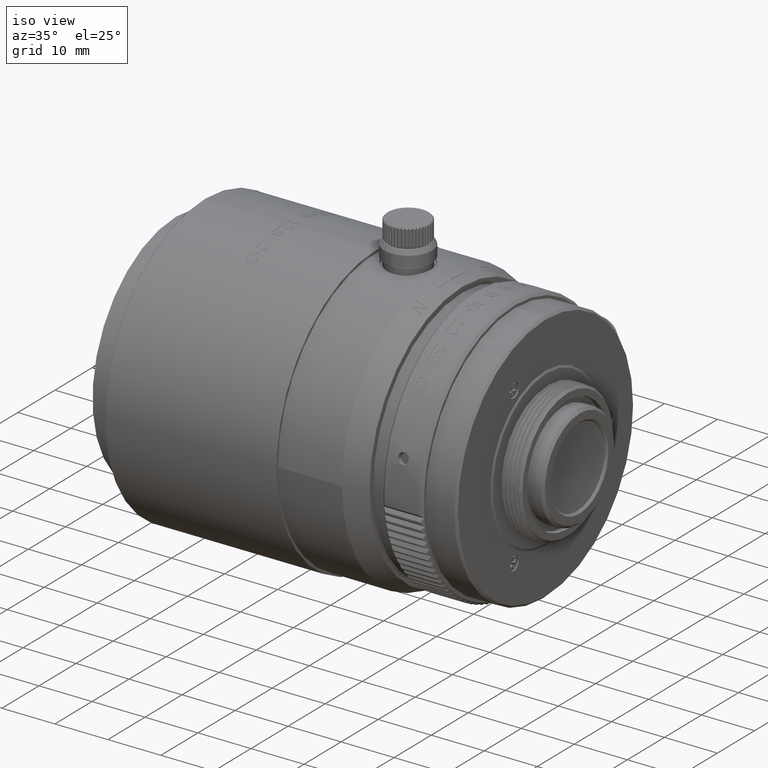
[diagram: clean part render]
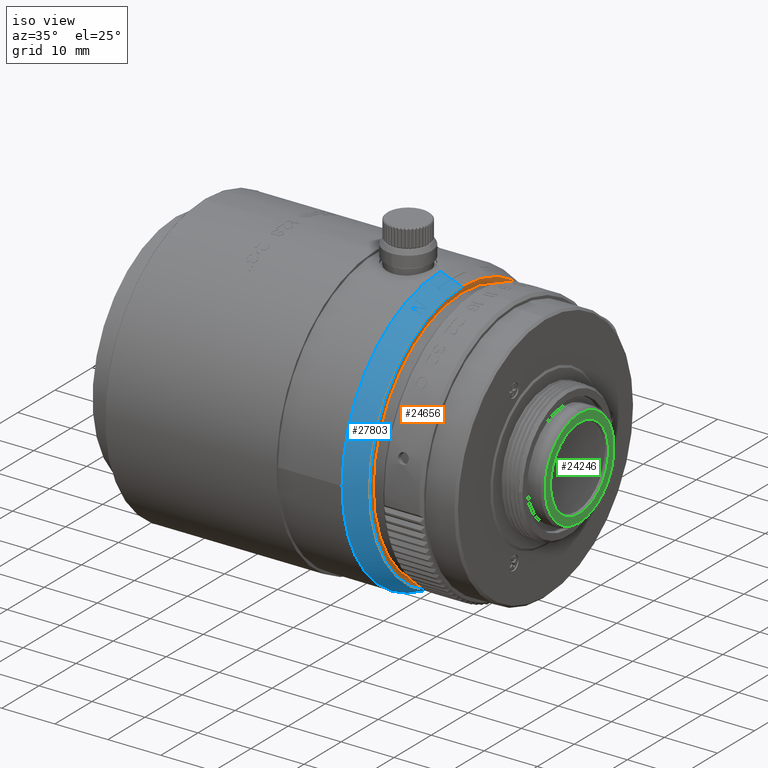
[diagram: same view with three faces highlighted in distinct colors, each labeled with its STEP entity id]
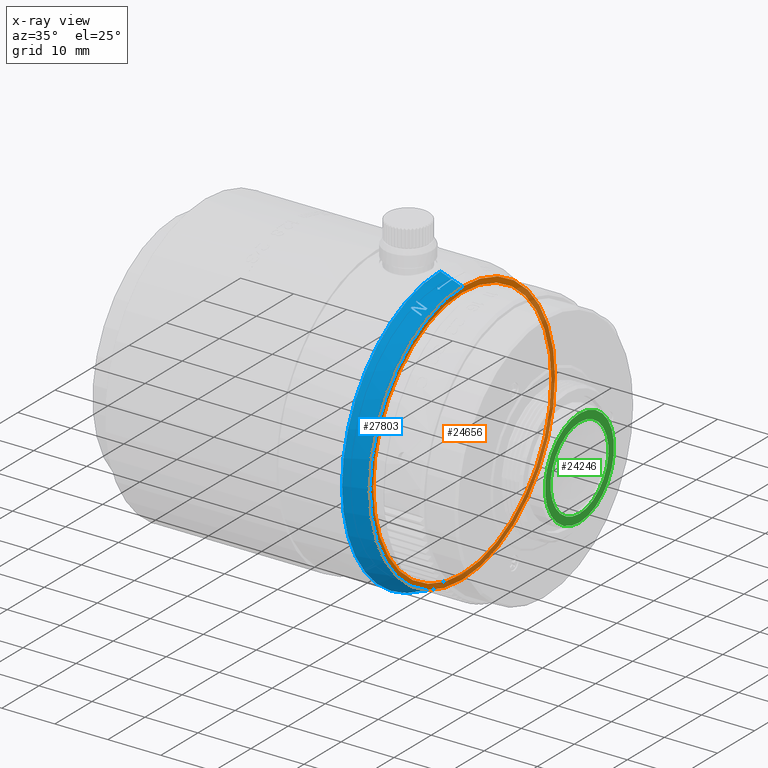
[diagram: x-ray of the same camera — body ghosted, the three highlighted faces saturated]
A machine part, iso view with three faces highlighted in distinct colors.
The next image is the same camera in x-ray (body ghosted, the three faces saturated) — at least one of them is partly hidden behind the body in this view.
Their STEP definitions:

[orange] entity #24656 — the highlighted planar face has unit normal (1, 0, 0).
#623 = EDGE_CURVE ( 'NONE', #21596, #50473, #19133, .T. ) ;
#2503 = CARTESIAN_POINT ( 'NONE',  ( 2665.921401344000060, 1132.760967307000101, 0.000000000000000000 ) ) ;
#2552 = DIRECTION ( 'NONE',  ( 1.000000000000000000, 0.000000000000000000, 0.000000000000000000 ) ) ;
#2854 = DIRECTION ( 'NONE',  ( 0.000000000000000000, 0.000000000000000000, -1.000000000000000000 ) ) ;
#8539 = AXIS2_PLACEMENT_3D ( 'NONE', #60477, #19553, #24713 ) ;
#8540 = DIRECTION ( 'NONE',  ( 0.000000000000000000, 0.000000000000000000, -1.000000000000000000 ) ) ;
#11919 = VERTEX_POINT ( 'NONE', #65789 ) ;
#12016 = PLANE ( 'NONE',  #8539 ) ;
#13204 = FACE_OUTER_BOUND ( 'NONE', #76461, .T. ) ;
#13504 = EDGE_CURVE ( 'NONE', #48455, #11919, #54965, .T. ) ;
#14808 = CARTESIAN_POINT ( 'NONE',  ( 2665.921401344000060, 1132.760967307000101, 0.000000000000000000 ) ) ;
#19133 = CIRCLE ( 'NONE', #52088, 25.00000000014404833 ) ;
#19553 = DIRECTION ( 'NONE',  ( 1.000000000000000000, 0.000000000000000000, 0.000000000000000000 ) ) ;
#20261 = AXIS2_PLACEMENT_3D ( 'NONE', #49443, #2552, #8540 ) ;
#20411 = DIRECTION ( 'NONE',  ( 0.000000000000000000, 0.000000000000000000, 1.000000000000000000 ) ) ;
#21596 = VERTEX_POINT ( 'NONE', #45040 ) ;
#24656 = ADVANCED_FACE ( 'NONE', ( #25501, #13204 ), #12016, .T. ) ;
#24713 = DIRECTION ( 'NONE',  ( 0.000000000000000000, -1.000000000000000000, 0.000000000000000000 ) ) ;
#25501 = FACE_BOUND ( 'NONE', #77659, .T. ) ;
#26508 = EDGE_CURVE ( 'NONE', #11919, #48455, #26915, .T. ) ;
#26915 = CIRCLE ( 'NONE', #39578, 24.00000000000002132 ) ;
#28400 = CARTESIAN_POINT ( 'NONE',  ( 2665.921401344000060, 1132.760967307000101, 25.00000000014404833 ) ) ;
#38608 = DIRECTION ( 'NONE',  ( 1.000000000000000000, 0.000000000000000000, 0.000000000000000000 ) ) ;
#38887 = ORIENTED_EDGE ( 'NONE', *, *, #71108, .T. ) ;
#39422 = DIRECTION ( 'NONE',  ( 1.000000000000000000, 0.000000000000000000, 0.000000000000000000 ) ) ;
#39578 = AXIS2_PLACEMENT_3D ( 'NONE', #64235, #57886, #77282 ) ;
#43011 = ORIENTED_EDGE ( 'NONE', *, *, #13504, .F. ) ;
#43572 = AXIS2_PLACEMENT_3D ( 'NONE', #2503, #39422, #20411 ) ;
#45040 = CARTESIAN_POINT ( 'NONE',  ( 2665.921401344000060, 1132.760967307000101, -25.00000000014404833 ) ) ;
#48455 = VERTEX_POINT ( 'NONE', #64272 ) ;
#49443 = CARTESIAN_POINT ( 'NONE',  ( 2665.921401344000060, 1132.760967307000101, 0.000000000000000000 ) ) ;
#50473 = VERTEX_POINT ( 'NONE', #28400 ) ;
#52088 = AXIS2_PLACEMENT_3D ( 'NONE', #14808, #38608, #2854 ) ;
#54965 = CIRCLE ( 'NONE', #43572, 24.00000000000002132 ) ;
#57886 = DIRECTION ( 'NONE',  ( 1.000000000000000000, 0.000000000000000000, 0.000000000000000000 ) ) ;
#60477 = CARTESIAN_POINT ( 'NONE',  ( 2665.921401344000060, 1158.760967307000101, 26.00000000000000355 ) ) ;
#60524 = ORIENTED_EDGE ( 'NONE', *, *, #623, .T. ) ;
#64235 = CARTESIAN_POINT ( 'NONE',  ( 2665.921401344000060, 1132.760967307000101, 0.000000000000000000 ) ) ;
#64272 = CARTESIAN_POINT ( 'NONE',  ( 2665.921401344000060, 1132.760967307000101, -24.00000000000002132 ) ) ;
#65789 = CARTESIAN_POINT ( 'NONE',  ( 2665.921401344000060, 1132.760967307000101, 24.00000000000002132 ) ) ;
#69310 = ORIENTED_EDGE ( 'NONE', *, *, #26508, .F. ) ;
#71108 = EDGE_CURVE ( 'NONE', #50473, #21596, #76216, .T. ) ;
#76216 = CIRCLE ( 'NONE', #20261, 25.00000000014404833 ) ;
#76461 = EDGE_LOOP ( 'NONE', ( #38887, #60524 ) ) ;
#77282 = DIRECTION ( 'NONE',  ( 0.000000000000000000, 0.000000000000000000, 1.000000000000000000 ) ) ;
#77659 = EDGE_LOOP ( 'NONE', ( #43011, #69310 ) ) ;

[blue] entity #27803 — the highlighted conical surface has half-angle 20 deg.
#145 = CARTESIAN_POINT ( 'NONE',  ( 2663.996401375863115, 1129.340349742484250, 25.47201629308155546 ) ) ;
#306 = CARTESIAN_POINT ( 'NONE',  ( 2661.800186457000109, 1132.760967307000101, 26.49999954781626954 ) ) ;
#327 = CONICAL_SURFACE ( 'NONE', #6687, 25.00000000012724044, 0.3490658503537381607 ) ;
#613 = EDGE_CURVE ( 'NONE', #17380, #53683, #19929, .T. ) ;
#631 = CIRCLE ( 'NONE', #22215, 26.09191070279067404 ) ;
#888 = EDGE_CURVE ( 'NONE', #18260, #61705, #78541, .T. ) ;
#937 = CARTESIAN_POINT ( 'NONE',  ( 2663.996404401758809, 1132.121100535088090, 25.69267499799989452 ) ) ;
#1096 = CARTESIAN_POINT ( 'NONE',  ( 2663.996401343955313, 1132.760967307081273, 25.70064270102452753 ) ) ;
#1126 = CARTESIAN_POINT ( 'NONE',  ( 2662.921401343940033, 1123.469300680042352, 24.38140142439421609 ) ) ;
#1376 = CARTESIAN_POINT ( 'NONE',  ( 2663.219273686151155, 1123.344300680351807, 24.21710867135044865 ) ) ;
#2000 = AXIS2_PLACEMENT_3D ( 'NONE', #67257, #57251, #66888 ) ;
#2068 = CARTESIAN_POINT ( 'NONE',  ( 2663.846405487533502, 1131.963014637704646, 25.74324676562866898 ) ) ;
#2552 = DIRECTION ( 'NONE',  ( 1.000000000000000000, 0.000000000000000000, 0.000000000000000000 ) ) ;
#2629 = CARTESIAN_POINT ( 'NONE',  ( 2664.921401335993778, 1123.344300688287603, 23.55116503980136144 ) ) ;
#3229 = CARTESIAN_POINT ( 'NONE',  ( 2663.846408501732640, 1131.408344710588381, 25.71969234879962585 ) ) ;
#3428 = CARTESIAN_POINT ( 'NONE',  ( 2662.921401343940033, 1123.469300680042352, 24.38140142439421609 ) ) ;
#4745 = EDGE_CURVE ( 'NONE', #57425, #38647, #58160, .T. ) ;
#4931 = CARTESIAN_POINT ( 'NONE',  ( 2662.921401343996422, 1132.760967307000101, 0.000000000000000000 ) ) ;
#4979 = CARTESIAN_POINT ( 'NONE',  ( 2664.080723474292427, 1129.206504185687436, 25.42267148268837929 ) ) ;
#5642 = EDGE_CURVE ( 'NONE', #6640, #21243, #62736, .T. ) ;
#5664 = DIRECTION ( 'NONE',  ( 0.000000000000000000, 0.000000000000000000, -1.000000000000000000 ) ) ;
#5717 = CARTESIAN_POINT ( 'NONE',  ( 2663.996408044418331, 1130.512777637014551, 25.60249630065290560 ) ) ;
#6228 = ORIENTED_EDGE ( 'NONE', *, *, #21597, .F. ) ;
#6566 = ORIENTED_EDGE ( 'NONE', *, *, #5642, .F. ) ;
#6640 = VERTEX_POINT ( 'NONE', #17670 ) ;
#6687 = AXIS2_PLACEMENT_3D ( 'NONE', #28938, #76598, #22590 ) ;
#7346 = CARTESIAN_POINT ( 'NONE',  ( 2664.921401343978687, 1124.385967307159490, 23.94139430046730155 ) ) ;
#7558 = B_SPLINE_CURVE_WITH_KNOTS ( 'NONE', 3,
 ( #34592, #57280, #46907, #34202 ),
 .UNSPECIFIED., .F., .F.,
 ( 4, 4 ),
 ( 0.000000000000000000, 1.000000000000000000 ),
 .UNSPECIFIED. ) ;
#8032 = CARTESIAN_POINT ( 'NONE',  ( 2663.846401532117852, 1132.656875727313945, 25.75502782014689984 ) ) ;
#8092 = CARTESIAN_POINT ( 'NONE',  ( 2663.846401344168044, 1129.305967307666833, 25.52244642666135022 ) ) ;
#8432 = CARTESIAN_POINT ( 'NONE',  ( 2663.846402402873082, 1129.623315253298642, 25.56339993698422219 ) ) ;
#8448 = CARTESIAN_POINT ( 'NONE',  ( 2664.092246014210559, 1124.510967307113788, 24.30378072738568562 ) ) ;
#8540 = DIRECTION ( 'NONE',  ( 0.000000000000000000, 0.000000000000000000, -1.000000000000000000 ) ) ;
#8688 = ORIENTED_EDGE ( 'NONE', *, *, #58697, .F. ) ;
#8817 = CARTESIAN_POINT ( 'NONE',  ( 2663.846401899146258, 1132.518083552825601, 25.75446674378655487 ) ) ;
#9209 = CARTESIAN_POINT ( 'NONE',  ( 2663.846403588715475, 1132.240526417823730, 25.74997855914980960 ) ) ;
#9299 = EDGE_CURVE ( 'NONE', #38647, #18260, #65856, .T. ) ;
#9330 = VERTEX_POINT ( 'NONE', #64436 ) ;
#9423 = VERTEX_POINT ( 'NONE', #23504 ) ;
#9753 = ORIENTED_EDGE ( 'NONE', *, *, #71020, .F. ) ;
#10533 = CARTESIAN_POINT ( 'NONE',  ( 2663.996408257164603, 1131.482026439403171, 25.66879849480450204 ) ) ;
#10992 = CARTESIAN_POINT ( 'NONE',  ( 2663.814498884632940, 1129.119138075721366, 25.50818746060546971 ) ) ;
#11508 = ORIENTED_EDGE ( 'NONE', *, *, #22668, .T. ) ;
#12084 = CARTESIAN_POINT ( 'NONE',  ( 2663.996409194235639, 1131.204834119968154, 25.65386133918117295 ) ) ;
#12276 = CARTESIAN_POINT ( 'NONE',  ( 2664.093536215739277, 1124.169127101218919, 24.18618178291022502 ) ) ;
#12524 = ORIENTED_EDGE ( 'NONE', *, *, #68489, .T. ) ;
#12973 = B_SPLINE_CURVE_WITH_KNOTS ( 'NONE', 3,
 ( #21151, #38190, #62450, #8032, #8817, #57667, #9209, #56489, #2068, #67979, #33419, #50539, #3229, #75932, #33026, #74755, #57268, #20345, #32649, #27091, #13616, #44557, #51323, #75540, #8432, #50924, #37801, #62052 ),
 .UNSPECIFIED., .F., .F.,
 ( 4, 3, 3, 3, 3, 3, 3, 3, 3, 4 ),
 ( 1.603165294530711463E-13, 0.0001040917924215829039, 0.0005204844746114176439, 0.0009368771526300698465, 0.001353269827859174919, 0.001769662501684561269, 0.002186055175494770741, 0.002825605813365328779, 0.003145541488739255626, 0.003465526554264944294 ),
 .UNSPECIFIED. ) ;
#13156 = CARTESIAN_POINT ( 'NONE',  ( 2662.921401343996422, 1132.760967307000101, 0.000000000000000000 ) ) ;
#13182 = ORIENTED_EDGE ( 'NONE', *, *, #68261, .F. ) ;
#13616 = CARTESIAN_POINT ( 'NONE',  ( 2663.846405825489910, 1130.152984536316580, 25.62374053203935986 ) ) ;
#14166 = ORIENTED_EDGE ( 'NONE', *, *, #9299, .F. ) ;
#14877 = EDGE_CURVE ( 'NONE', #65535, #9423, #7558, .T. ) ;
#16029 = B_SPLINE_CURVE_WITH_KNOTS ( 'NONE', 3,
 ( #76643, #70677, #16285, #34525 ),
 .UNSPECIFIED., .F., .F.,
 ( 4, 4 ),
 ( 0.000000000000000000, 1.000000000000000000 ),
 .UNSPECIFIED. ) ;
#16217 = VERTEX_POINT ( 'NONE', #306 ) ;
#16285 = CARTESIAN_POINT ( 'NONE',  ( 2663.794230271341348, 1123.344300679854769, 23.99257772980680414 ) ) ;
#17278 = CARTESIAN_POINT ( 'NONE',  ( 2663.996403603129238, 1129.822394409577555, 25.53209318302077691 ) ) ;
#17380 = VERTEX_POINT ( 'NONE', #38838 ) ;
#17533 = CARTESIAN_POINT ( 'NONE',  ( 2664.921401343978687, 1124.385967307159490, 23.94139430046730155 ) ) ;
#17648 = VERTEX_POINT ( 'NONE', #42349 ) ;
#17661 = CARTESIAN_POINT ( 'NONE',  ( 2663.996401343903017, 1129.305967306938555, 25.46735184989363532 ) ) ;
#17670 = CARTESIAN_POINT ( 'NONE',  ( 2663.996401343903017, 1129.305967306938555, 25.46735184989363532 ) ) ;
#18056 = CARTESIAN_POINT ( 'NONE',  ( 2663.996409245475661, 1131.066342336692287, 25.64470966164083521 ) ) ;
#18093 = CARTESIAN_POINT ( 'NONE',  ( 2663.939204845514723, 1128.970639808771466, 25.44067199994881179 ) ) ;
#18260 = VERTEX_POINT ( 'NONE', #54617 ) ;
#18523 = CARTESIAN_POINT ( 'NONE',  ( 2663.673275576188644, 1129.354510253691160, 25.59255750419200837 ) ) ;
#18869 = CARTESIAN_POINT ( 'NONE',  ( 2663.974807161862827, 1129.029977000639064, 25.43632842859412335 ) ) ;
#19099 = DIRECTION ( 'NONE',  ( 1.000000000000000000, -0.000000000000000000, -0.000000000000000000 ) ) ;
#19413 = CARTESIAN_POINT ( 'NONE',  ( 2664.666082225338869, 1124.510967306828661, 24.08300637771136010 ) ) ;
#19484 = B_SPLINE_CURVE_WITH_KNOTS ( 'NONE', 3,
 ( #56968, #61757, #62141, #44645 ),
 .UNSPECIFIED., .F., .F.,
 ( 4, 4 ),
 ( 1.080163352911047448E-13, 0.0002202877274762545564 ),
 .UNSPECIFIED. ) ;
#19929 = B_SPLINE_CURVE_WITH_KNOTS ( 'NONE', 3,
 ( #68384, #38998, #8448, #57284 ),
 .UNSPECIFIED., .F., .F.,
 ( 4, 4 ),
 ( 0.000000000000000000, 1.000000000000000000 ),
 .UNSPECIFIED. ) ;
#20261 = AXIS2_PLACEMENT_3D ( 'NONE', #49443, #2552, #8540 ) ;
#20298 = AXIS2_PLACEMENT_3D ( 'NONE', #25347, #37650, #44803 ) ;
#20345 = CARTESIAN_POINT ( 'NONE',  ( 2663.846408798098764, 1130.715870645679843, 25.67428674913306352 ) ) ;
#20671 = EDGE_CURVE ( 'NONE', #61705, #17380, #59112, .T. ) ;
#21151 = CARTESIAN_POINT ( 'NONE',  ( 2663.846401343893831, 1132.760967307222927, 25.75523823617920272 ) ) ;
#21243 = VERTEX_POINT ( 'NONE', #1096 ) ;
#21596 = VERTEX_POINT ( 'NONE', #45040 ) ;
#21597 = EDGE_CURVE ( 'NONE', #21596, #25657, #69259, .T. ) ;
#21924 = EDGE_CURVE ( 'NONE', #54030, #59456, #12973, .T. ) ;
#21970 = ORIENTED_EDGE ( 'NONE', *, *, #21924, .F. ) ;
#22212 = B_SPLINE_CURVE_WITH_KNOTS ( 'NONE', 3,
 ( #77696, #18523, #48695, #54259, #29662, #72141, #10992, #60237, #41181, #60621 ),
 .UNSPECIFIED., .F., .F.,
 ( 4, 3, 3, 4 ),
 ( 3.807264752975403289E-13, 0.0001040020917421170886, 0.0003218310548011019860, 0.0005396676633403890960 ),
 .UNSPECIFIED. ) ;
#22215 = AXIS2_PLACEMENT_3D ( 'NONE', #13156, #19099, #24668 ) ;
#22590 = DIRECTION ( 'NONE',  ( 0.000000000000000000, 0.000000000000000000, 1.000000000000000000 ) ) ;
#22668 = EDGE_CURVE ( 'NONE', #16217, #9330, #33871, .T. ) ;
#23504 = CARTESIAN_POINT ( 'NONE',  ( 2664.921401343989146, 1123.094300680149900, 23.44965974962187971 ) ) ;
#24257 = CARTESIAN_POINT ( 'NONE',  ( 2664.264856186104225, 1124.760967306908242, 24.32111208694739091 ) ) ;
#24668 = DIRECTION ( 'NONE',  ( 0.000000000000000000, 2.042422488296641944E-13, -1.000000000000000000 ) ) ;
#24783 = CARTESIAN_POINT ( 'NONE',  ( 2663.996402409698931, 1132.440984320266125, 25.69865027964252846 ) ) ;
#24854 = AXIS2_PLACEMENT_3D ( 'NONE', #4931, #53387, #77602 ) ;
#25121 = CARTESIAN_POINT ( 'NONE',  ( 2661.800186457000109, 1132.760967307000101, -26.49999954781626954 ) ) ;
#25175 = CARTESIAN_POINT ( 'NONE',  ( 2663.996401343955313, 1132.760967307081273, 25.70064270102452753 ) ) ;
#25347 = CARTESIAN_POINT ( 'NONE',  ( 2661.800186457000109, 1132.760967307000101, 0.000000000000000000 ) ) ;
#25657 = VERTEX_POINT ( 'NONE', #25121 ) ;
#25950 = LINE ( 'NONE', #34139, #59857 ) ;
#26374 = CARTESIAN_POINT ( 'NONE',  ( 2663.996407352574352, 1131.694935634983040, 25.67940696692095770 ) ) ;
#26914 = B_SPLINE_CURVE_WITH_KNOTS ( 'NONE', 3,
 ( #78049, #18093, #53437, #18869, #41536, #47883, #4979, #29231, #48269, #77655 ),
 .UNSPECIFIED., .F., .F.,
 ( 4, 3, 3, 4 ),
 ( 9.679587383275679249E-14, 0.0001040018972623134351, 0.0003103193239240780257, 0.0005166434084057922645 ),
 .UNSPECIFIED. ) ;
#27091 = CARTESIAN_POINT ( 'NONE',  ( 2663.846407314053522, 1130.365176746361385, 25.64444993886546342 ) ) ;
#27803 = ADVANCED_FACE ( 'NONE', ( #65453, #59120 ), #327, .T. ) ;
#28400 = CARTESIAN_POINT ( 'NONE',  ( 2665.921401344000060, 1132.760967307000101, 25.00000000014404833 ) ) ;
#28822 = B_SPLINE_CURVE_WITH_KNOTS ( 'NONE', 3,
 ( #37152, #61419, #74515, #37945 ),
 .UNSPECIFIED., .F., .F.,
 ( 4, 4 ),
 ( 1.701739114718745292E-14, 0.0002136498929734882582 ),
 .UNSPECIFIED. ) ;
#28938 = CARTESIAN_POINT ( 'NONE',  ( 2665.921401344046444, 1132.760967307000101, 0.000000000000000000 ) ) ;
#29231 = CARTESIAN_POINT ( 'NONE',  ( 2664.116023256255176, 1129.265337156496571, 25.41792415657432258 ) ) ;
#29407 = ORIENTED_EDGE ( 'NONE', *, *, #62251, .F. ) ;
#29434 = CARTESIAN_POINT ( 'NONE',  ( 2663.598189519426796, 1124.760967307031478, 24.57641754409617718 ) ) ;
#29662 = CARTESIAN_POINT ( 'NONE',  ( 2663.743133789936110, 1129.238079899931563, 25.55118175279967119 ) ) ;
#29972 = CARTESIAN_POINT ( 'NONE',  ( 2663.996409296716138, 1130.927850553394364, 25.63555798409904796 ) ) ;
#30933 = CARTESIAN_POINT ( 'NONE',  ( 2663.511975922041529, 1123.821904892871999, 24.28574587663682394 ) ) ;
#31917 = CARTESIAN_POINT ( 'NONE',  ( 2663.996401851423798, 1132.547639113629430, 25.69997847942010694 ) ) ;
#32649 = CARTESIAN_POINT ( 'NONE',  ( 2663.846408212875758, 1130.577576955554377, 25.66252081136939367 ) ) ;
#33026 = CARTESIAN_POINT ( 'NONE',  ( 2663.846409245872564, 1131.131195591735377, 25.70399300093250972 ) ) ;
#33362 = DIRECTION ( 'NONE',  ( -0.9396926208013429704, 0.000000000000000000, 0.3420201432832625232 ) ) ;
#33419 = CARTESIAN_POINT ( 'NONE',  ( 2663.846407245429873, 1131.685611674416123, 25.73315098864250672 ) ) ;
#33871 = CIRCLE ( 'NONE', #78254, 26.49999954796000168 ) ;
#34139 = CARTESIAN_POINT ( 'NONE',  ( 2665.921401344046444, 1132.760967307000101, 25.00000000012724044 ) ) ;
#34202 = CARTESIAN_POINT ( 'NONE',  ( 2664.921401343989146, 1123.094300680149900, 23.44965974962187971 ) ) ;
#34416 = EDGE_CURVE ( 'NONE', #50473, #21243, #62609, .T. ) ;
#34525 = CARTESIAN_POINT ( 'NONE',  ( 2663.219273686151155, 1123.344300680351807, 24.21710867135044865 ) ) ;
#34592 = CARTESIAN_POINT ( 'NONE',  ( 2662.921401344244714, 1123.094300680216747, 24.23516784436827365 ) ) ;
#34633 = EDGE_LOOP ( 'NONE', ( #6228, #51079, #68359, #6566, #29407, #9753, #64443, #51608, #21970, #44827, #11508, #12524 ) ) ;
#34887 = EDGE_CURVE ( 'NONE', #53683, #42989, #55092, .T. ) ;
#35005 = CARTESIAN_POINT ( 'NONE',  ( 2664.921401344029164, 1132.760967307000101, 0.000000000000000000 ) ) ;
#35393 = AXIS2_PLACEMENT_3D ( 'NONE', #35005, #65203, #51735 ) ;
#35449 = CIRCLE ( 'NONE', #20298, 26.49999954796000168 ) ;
#36603 = ORIENTED_EDGE ( 'NONE', *, *, #888, .F. ) ;
#37152 = CARTESIAN_POINT ( 'NONE',  ( 2664.186601574873748, 1129.382967692685270, 25.40784481284358165 ) ) ;
#37650 = DIRECTION ( 'NONE',  ( 1.000000000000000000, -0.000000000000000000, -0.000000000000000000 ) ) ;
#37742 = CARTESIAN_POINT ( 'NONE',  ( 2662.921401343940033, 1124.760967306888460, 24.83521298724728510 ) ) ;
#37801 = CARTESIAN_POINT ( 'NONE',  ( 2663.846401441523085, 1129.411663102326656, 25.53675454006888401 ) ) ;
#37805 = ORIENTED_EDGE ( 'NONE', *, *, #14877, .F. ) ;
#37909 = CARTESIAN_POINT ( 'NONE',  ( 2664.362847958978818, 1124.044144286235223, 24.03719683883504743 ) ) ;
#37945 = CARTESIAN_POINT ( 'NONE',  ( 2663.996401343903017, 1129.305967306938555, 25.46735184989363532 ) ) ;
#38190 = CARTESIAN_POINT ( 'NONE',  ( 2663.846401375648384, 1132.726270042922124, 25.75523822462092838 ) ) ;
#38253 = CARTESIAN_POINT ( 'NONE',  ( 2663.996405854414206, 1131.907993304863794, 25.68736711067357348 ) ) ;
#38647 = VERTEX_POINT ( 'NONE', #17533 ) ;
#38838 = CARTESIAN_POINT ( 'NONE',  ( 2662.921401344068727, 1124.510967307209512, 24.75328875371363324 ) ) ;
#38998 = CARTESIAN_POINT ( 'NONE',  ( 2663.510685720514630, 1124.510967306958946, 24.52720790716113797 ) ) ;
#40506 = ORIENTED_EDGE ( 'NONE', *, *, #42178, .F. ) ;
#41013 = EDGE_LOOP ( 'NONE', ( #40506, #37805, #8688, #78397, #54157, #64024, #36603, #14166, #63801, #13182 ) ) ;
#41181 = CARTESIAN_POINT ( 'NONE',  ( 2663.885800632823248, 1129.000301826079522, 25.46478088775979032 ) ) ;
#41536 = CARTESIAN_POINT ( 'NONE',  ( 2664.010119107864739, 1129.088830242028280, 25.43197097649565563 ) ) ;
#41875 = CARTESIAN_POINT ( 'NONE',  ( 2663.996405514144044, 1130.098294770511984, 25.56271495593713539 ) ) ;
#41884 = VERTEX_POINT ( 'NONE', #2629 ) ;
#42178 = EDGE_CURVE ( 'NONE', #9423, #41884, #48928, .T. ) ;
#42264 = CARTESIAN_POINT ( 'NONE',  ( 2663.996408846129270, 1131.343404578083209, 25.66189148382952467 ) ) ;
#42349 = CARTESIAN_POINT ( 'NONE',  ( 2663.656201112893996, 1129.382967692591137, 25.60258062848378557 ) ) ;
#42989 = VERTEX_POINT ( 'NONE', #3428 ) ;
#44232 = CARTESIAN_POINT ( 'NONE',  ( 2663.996402967887661, 1132.334346059516292, 25.69732228574986976 ) ) ;
#44557 = CARTESIAN_POINT ( 'NONE',  ( 2663.846404382150013, 1129.941098446167871, 25.60040193528240948 ) ) ;
#44645 = CARTESIAN_POINT ( 'NONE',  ( 2663.656201112893996, 1129.382967692591137, 25.60258062848378557 ) ) ;
#44803 = DIRECTION ( 'NONE',  ( 0.000000000000000000, 0.000000000000000000, -1.000000000000000000 ) ) ;
#44827 = ORIENTED_EDGE ( 'NONE', *, *, #50689, .T. ) ;
#45040 = CARTESIAN_POINT ( 'NONE',  ( 2665.921401344000060, 1132.760967307000101, -25.00000000014404833 ) ) ;
#46907 = CARTESIAN_POINT ( 'NONE',  ( 2664.265239001766076, 1123.094300679882508, 23.70797964702095229 ) ) ;
#47299 = CARTESIAN_POINT ( 'NONE',  ( 2664.921401343397065, 1124.760967308004638, 24.06929550145240881 ) ) ;
#47780 = CARTESIAN_POINT ( 'NONE',  ( 2661.800186457000109, 1132.760967307000101, 0.000000000000000000 ) ) ;
#47839 = CARTESIAN_POINT ( 'NONE',  ( 2663.996401440991121, 1129.374741696065485, 25.47661110609264412 ) ) ;
#47883 = CARTESIAN_POINT ( 'NONE',  ( 2664.045424831304445, 1129.147673113169731, 25.42741865562624426 ) ) ;
#48227 = CARTESIAN_POINT ( 'NONE',  ( 2663.996407283349981, 1130.374540034133133, 25.58998149133684308 ) ) ;
#48269 = CARTESIAN_POINT ( 'NONE',  ( 2664.151316242119265, 1129.324158802590546, 25.41298192750561213 ) ) ;
#48695 = CARTESIAN_POINT ( 'NONE',  ( 2663.690342784375844, 1129.326064907339060, 25.58248756972954041 ) ) ;
#48928 = CIRCLE ( 'NONE', #2000, 25.36397023434886577 ) ;
#49443 = CARTESIAN_POINT ( 'NONE',  ( 2665.921401344000060, 1132.760967307000101, 0.000000000000000000 ) ) ;
#50163 = CARTESIAN_POINT ( 'NONE',  ( 2664.186601574873748, 1129.382967692685270, 25.40784481284358165 ) ) ;
#50473 = VERTEX_POINT ( 'NONE', #28400 ) ;
#50539 = CARTESIAN_POINT ( 'NONE',  ( 2663.846408001625605, 1131.546946467717135, 25.72698172668658501 ) ) ;
#50684 = CARTESIAN_POINT ( 'NONE',  ( 2665.921401344046444, 1132.760967307000101, 25.00000000012724044 ) ) ;
#50689 = EDGE_CURVE ( 'NONE', #54030, #16217, #25950, .T. ) ;
#50924 = CARTESIAN_POINT ( 'NONE',  ( 2663.846401848182268, 1129.517449836529750, 25.55040621770550757 ) ) ;
#51079 = ORIENTED_EDGE ( 'NONE', *, *, #71108, .F. ) ;
#51187 = CARTESIAN_POINT ( 'NONE',  ( 2664.666082225338869, 1124.510967306828661, 24.08300637771136010 ) ) ;
#51323 = CARTESIAN_POINT ( 'NONE',  ( 2663.846403660076248, 1129.835096149756964, 25.58872611055266333 ) ) ;
#51608 = ORIENTED_EDGE ( 'NONE', *, *, #76616, .F. ) ;
#51735 = DIRECTION ( 'NONE',  ( 0.000000000000000000, 0.000000000000000000, -1.000000000000000000 ) ) ;
#52581 = DIRECTION ( 'NONE',  ( 1.000000000000000000, -0.000000000000000000, -0.000000000000000000 ) ) ;
#52802 = VECTOR ( 'NONE', #75692, 1000.000000000000000 ) ;
#53387 = DIRECTION ( 'NONE',  ( 1.000000000000000000, -0.000000000000000000, -0.000000000000000000 ) ) ;
#53437 = CARTESIAN_POINT ( 'NONE',  ( 2663.957006821465257, 1129.000309767624458, 25.43852496940825958 ) ) ;
#53683 = VERTEX_POINT ( 'NONE', #51187 ) ;
#54030 = VERTEX_POINT ( 'NONE', #76082 ) ;
#54157 = ORIENTED_EDGE ( 'NONE', *, *, #613, .F. ) ;
#54259 = CARTESIAN_POINT ( 'NONE',  ( 2663.707402628306227, 1129.297631834722552, 25.57237083970573011 ) ) ;
#54617 = CARTESIAN_POINT ( 'NONE',  ( 2664.921401343397065, 1124.760967308004638, 24.06929550145240881 ) ) ;
#55092 = B_SPLINE_CURVE_WITH_KNOTS ( 'NONE', 3,
 ( #19413, #12276, #30933, #1126 ),
 .UNSPECIFIED., .F., .F.,
 ( 4, 4 ),
 ( 0.000000000000000000, 1.000000000000000000 ),
 .UNSPECIFIED. ) ;
#56489 = CARTESIAN_POINT ( 'NONE',  ( 2663.846404485811490, 1132.101761456355689, 25.74717361042836217 ) ) ;
#56497 = CARTESIAN_POINT ( 'NONE',  ( 2662.921401344244714, 1123.094300680216747, 24.23516784436827365 ) ) ;
#56968 = CARTESIAN_POINT ( 'NONE',  ( 2663.846401344168044, 1129.305967307666833, 25.52244642666135022 ) ) ;
#57251 = DIRECTION ( 'NONE',  ( -1.000000000000000000, 0.000000000000000000, 0.000000000000000000 ) ) ;
#57268 = CARTESIAN_POINT ( 'NONE',  ( 2663.846409144003246, 1130.854263960523213, 25.68493520128613739 ) ) ;
#57280 = CARTESIAN_POINT ( 'NONE',  ( 2663.598572335089102, 1123.094300679981188, 23.96981480575581003 ) ) ;
#57284 = CARTESIAN_POINT ( 'NONE',  ( 2664.666082225338869, 1124.510967306828661, 24.08300637771136010 ) ) ;
#57366 = CARTESIAN_POINT ( 'NONE',  ( 2665.921401344046444, 1132.760967307000101, -25.00000000012724044 ) ) ;
#57425 = VERTEX_POINT ( 'NONE', #70281 ) ;
#57667 = CARTESIAN_POINT ( 'NONE',  ( 2663.846402691619005, 1132.379291380143968, 25.75278350788848769 ) ) ;
#58160 = B_SPLINE_CURVE_WITH_KNOTS ( 'NONE', 3,
 ( #1376, #74078, #37909, #7346 ),
 .UNSPECIFIED., .F., .F.,
 ( 4, 4 ),
 ( 0.000000000000000000, 1.000000000000000000 ),
 .UNSPECIFIED. ) ;
#58697 = EDGE_CURVE ( 'NONE', #42989, #65535, #631, .T. ) ;
#59112 = CIRCLE ( 'NONE', #24854, 26.09191070279062430 ) ;
#59120 = FACE_BOUND ( 'NONE', #41013, .T. ) ;
#59456 = VERTEX_POINT ( 'NONE', #8092 ) ;
#59857 = VECTOR ( 'NONE', #33362, 1000.000000000000000 ) ;
#59874 = CARTESIAN_POINT ( 'NONE',  ( 2663.921401344130572, 1128.940967306558832, 25.44276951805117548 ) ) ;
#60154 = CARTESIAN_POINT ( 'NONE',  ( 2663.996409051092996, 1130.789428359044905, 25.62528417326085872 ) ) ;
#60237 = CARTESIAN_POINT ( 'NONE',  ( 2663.850166143354272, 1129.059692643921608, 25.48658691642597063 ) ) ;
#60577 = VERTEX_POINT ( 'NONE', #50163 ) ;
#60621 = CARTESIAN_POINT ( 'NONE',  ( 2663.921401344130572, 1128.940967306558832, 25.44276951805117548 ) ) ;
#61419 = CARTESIAN_POINT ( 'NONE',  ( 2664.123275664105222, 1129.357330922724941, 25.42768793626595425 ) ) ;
#61705 = VERTEX_POINT ( 'NONE', #37742 ) ;
#61757 = CARTESIAN_POINT ( 'NONE',  ( 2663.783100650279266, 1129.331593868139862, 25.54916523435423770 ) ) ;
#62052 = CARTESIAN_POINT ( 'NONE',  ( 2663.846401344168044, 1129.305967307666833, 25.52244642666135022 ) ) ;
#62141 = CARTESIAN_POINT ( 'NONE',  ( 2663.719700554605424, 1129.357260670433334, 25.57587664273027883 ) ) ;
#62169 = EDGE_CURVE ( 'NONE', #17648, #74072, #22212, .T. ) ;
#62251 = EDGE_CURVE ( 'NONE', #60577, #6640, #28822, .T. ) ;
#62450 = CARTESIAN_POINT ( 'NONE',  ( 2663.846401440363024, 1132.691572707940850, 25.75516808493976129 ) ) ;
#62609 = LINE ( 'NONE', #50684, #52802 ) ;
#62736 = B_SPLINE_CURVE_WITH_KNOTS ( 'NONE', 3,
 ( #17661, #145, #47839, #72063, #71672, #77608, #17278, #72841, #41875, #66096, #48227, #5717, #64931, #60154, #29972, #18056, #12084, #42264, #10533, #26374, #38253, #937, #74033, #44232, #24783, #31917, #67241, #25175 ),
 .UNSPECIFIED., .F., .F.,
 ( 4, 3, 3, 3, 3, 3, 3, 3, 3, 4 ),
 ( 5.936331903092721072E-14, 0.0001040921711856574654, 0.0005204864772559353097, 0.0009368807791186335027, 0.001353275078168008445, 0.001769669375801883942, 0.002186063673419559941, 0.002825631829060806441, 0.003145576959200983153, 0.003465571694469764437 ),
 .UNSPECIFIED. ) ;
#63801 = ORIENTED_EDGE ( 'NONE', *, *, #4745, .F. ) ;
#64024 = ORIENTED_EDGE ( 'NONE', *, *, #20671, .F. ) ;
#64436 = CARTESIAN_POINT ( 'NONE',  ( 2661.800186457000109, 1106.260967759040113, 0.000000000000000000 ) ) ;
#64443 = ORIENTED_EDGE ( 'NONE', *, *, #62169, .F. ) ;
#64931 = CARTESIAN_POINT ( 'NONE',  ( 2663.996408547755436, 1130.651102998180022, 25.61389023696926515 ) ) ;
#65203 = DIRECTION ( 'NONE',  ( -1.000000000000000000, 0.000000000000000000, 0.000000000000000000 ) ) ;
#65453 = FACE_OUTER_BOUND ( 'NONE', #34633, .T. ) ;
#65535 = VERTEX_POINT ( 'NONE', #56497 ) ;
#65856 = CIRCLE ( 'NONE', #35393, 25.36397023434865261 ) ;
#65952 = CARTESIAN_POINT ( 'NONE',  ( 2662.921401343940033, 1124.760967306888460, 24.83521298724728510 ) ) ;
#66096 = CARTESIAN_POINT ( 'NONE',  ( 2663.996406398747240, 1130.236417402611778, 25.57634822366553706 ) ) ;
#66888 = DIRECTION ( 'NONE',  ( 0.000000000000000000, 0.000000000000000000, -1.000000000000000000 ) ) ;
#67241 = CARTESIAN_POINT ( 'NONE',  ( 2663.996401442138449, 1132.654304243775414, 25.70064266528872565 ) ) ;
#67257 = CARTESIAN_POINT ( 'NONE',  ( 2664.921401344028709, 1132.760967307000101, 0.000000000000000000 ) ) ;
#67979 = CARTESIAN_POINT ( 'NONE',  ( 2663.846406366481915, 1131.824313155772415, 25.73819887712510734 ) ) ;
#68040 = VECTOR ( 'NONE', #76014, 1000.000000000000000 ) ;
#68261 = EDGE_CURVE ( 'NONE', #41884, #57425, #16029, .T. ) ;
#68359 = ORIENTED_EDGE ( 'NONE', *, *, #34416, .T. ) ;
#68384 = CARTESIAN_POINT ( 'NONE',  ( 2662.921401344068727, 1124.510967307209512, 24.75328875371363324 ) ) ;
#68489 = EDGE_CURVE ( 'NONE', #9330, #25657, #35449, .T. ) ;
#69259 = LINE ( 'NONE', #57366, #68040 ) ;
#70281 = CARTESIAN_POINT ( 'NONE',  ( 2663.219273686151155, 1123.344300680351807, 24.21710867135044865 ) ) ;
#70677 = CARTESIAN_POINT ( 'NONE',  ( 2664.361606159694929, 1123.344300679891603, 23.77059701116719737 ) ) ;
#71020 = EDGE_CURVE ( 'NONE', #74072, #60577, #26914, .T. ) ;
#71108 = EDGE_CURVE ( 'NONE', #50473, #21596, #76216, .T. ) ;
#71672 = CARTESIAN_POINT ( 'NONE',  ( 2663.996401902714297, 1129.546751170421658, 25.49923730520685083 ) ) ;
#72063 = CARTESIAN_POINT ( 'NONE',  ( 2663.996401533333483, 1129.409142744200381, 25.48113623453541265 ) ) ;
#72141 = CARTESIAN_POINT ( 'NONE',  ( 2663.778832877291279, 1129.178581421888566, 25.52978724693377188 ) ) ;
#72841 = CARTESIAN_POINT ( 'NONE',  ( 2663.996404505985993, 1129.960278047088423, 25.54796233529577876 ) ) ;
#74033 = CARTESIAN_POINT ( 'NONE',  ( 2663.996403675023430, 1132.227713999958723, 25.69533043234815750 ) ) ;
#74072 = VERTEX_POINT ( 'NONE', #59874 ) ;
#74078 = CARTESIAN_POINT ( 'NONE',  ( 2663.795472070622509, 1123.696922076912870, 24.12920734237872722 ) ) ;
#74515 = CARTESIAN_POINT ( 'NONE',  ( 2664.059875568440020, 1129.331664120229107, 25.44752362114095945 ) ) ;
#74755 = CARTESIAN_POINT ( 'NONE',  ( 2663.846409194937678, 1130.992729776118722, 25.69446410110858636 ) ) ;
#75540 = CARTESIAN_POINT ( 'NONE',  ( 2663.846402957478404, 1129.729164330295589, 25.57639165075052290 ) ) ;
#75692 = DIRECTION ( 'NONE',  ( -0.9396926208013429704, 0.000000000000000000, 0.3420201432832625232 ) ) ;
#75932 = CARTESIAN_POINT ( 'NONE',  ( 2663.846409001839675, 1131.269742953758850, 25.71240297092838389 ) ) ;
#76014 = DIRECTION ( 'NONE',  ( -0.9396926208013429704, 4.188538737157665526E-17, -0.3420201432832625232 ) ) ;
#76082 = CARTESIAN_POINT ( 'NONE',  ( 2663.846401343893831, 1132.760967307222927, 25.75523823617920272 ) ) ;
#76216 = CIRCLE ( 'NONE', #20261, 25.00000000014404833 ) ;
#76598 = DIRECTION ( 'NONE',  ( -1.000000000000000000, -0.000000000000000000, 0.000000000000000000 ) ) ;
#76616 = EDGE_CURVE ( 'NONE', #59456, #17648, #19484, .T. ) ;
#76643 = CARTESIAN_POINT ( 'NONE',  ( 2664.921401335993778, 1123.344300688287603, 23.55116503980136144 ) ) ;
#77602 = DIRECTION ( 'NONE',  ( 0.000000000000000000, 1.531816866222484550E-13, -1.000000000000000000 ) ) ;
#77608 = CARTESIAN_POINT ( 'NONE',  ( 2663.996402700272483, 1129.684510771212445, 25.51622403064743239 ) ) ;
#77655 = CARTESIAN_POINT ( 'NONE',  ( 2664.186601574873748, 1129.382967692685270, 25.40784481284358165 ) ) ;
#77696 = CARTESIAN_POINT ( 'NONE',  ( 2663.656201112893996, 1129.382967692591137, 25.60258062848378557 ) ) ;
#78049 = CARTESIAN_POINT ( 'NONE',  ( 2663.921401344130572, 1128.940967306558832, 25.44276951805117548 ) ) ;
#78254 = AXIS2_PLACEMENT_3D ( 'NONE', #47780, #52581, #5664 ) ;
#78397 = ORIENTED_EDGE ( 'NONE', *, *, #34887, .F. ) ;
#78541 = B_SPLINE_CURVE_WITH_KNOTS ( 'NONE', 3,
 ( #47299, #24257, #29434, #65952 ),
 .UNSPECIFIED., .F., .F.,
 ( 4, 4 ),
 ( 0.000000000000000000, 1.000000000000000000 ),
 .UNSPECIFIED. ) ;

[green] entity #24246 — the highlighted planar face has unit normal (1, 0, 0).
#1884 = EDGE_CURVE ( 'NONE', #1904, #52583, #35612, .T. ) ;
#1904 = VERTEX_POINT ( 'NONE', #40182 ) ;
#3524 = DIRECTION ( 'NONE',  ( 1.000000000000000000, 0.000000000000000000, 0.000000000000000000 ) ) ;
#4172 = CARTESIAN_POINT ( 'NONE',  ( 2688.042952906000210, 1132.760967307000101, -9.300000033871436145 ) ) ;
#7603 = CIRCLE ( 'NONE', #17764, 7.800000000795170862 ) ;
#7731 = EDGE_CURVE ( 'NONE', #52583, #1904, #54508, .T. ) ;
#7737 = AXIS2_PLACEMENT_3D ( 'NONE', #76342, #58096, #34612 ) ;
#8082 = DIRECTION ( 'NONE',  ( 1.000000000000000000, 0.000000000000000000, 0.000000000000000000 ) ) ;
#8561 = CARTESIAN_POINT ( 'NONE',  ( 2688.042952905725997, 1132.760967307000101, 7.800000000795278332 ) ) ;
#14232 = CIRCLE ( 'NONE', #57306, 7.800000000795170862 ) ;
#15498 = DIRECTION ( 'NONE',  ( 0.000000000000000000, 1.000000000000000000, 0.000000000000000000 ) ) ;
#17764 = AXIS2_PLACEMENT_3D ( 'NONE', #70233, #3524, #34862 ) ;
#18444 = VERTEX_POINT ( 'NONE', #8561 ) ;
#20686 = ORIENTED_EDGE ( 'NONE', *, *, #69757, .F. ) ;
#24246 = ADVANCED_FACE ( 'NONE', ( #27810, #27424 ), #68303, .T. ) ;
#27424 = FACE_OUTER_BOUND ( 'NONE', #62427, .T. ) ;
#27810 = FACE_BOUND ( 'NONE', #66324, .T. ) ;
#28358 = CARTESIAN_POINT ( 'NONE',  ( 2688.042952906000210, 1132.760967307000101, 0.000000000000000000 ) ) ;
#29194 = AXIS2_PLACEMENT_3D ( 'NONE', #28358, #51412, #52570 ) ;
#30277 = VERTEX_POINT ( 'NONE', #78463 ) ;
#34612 = DIRECTION ( 'NONE',  ( 0.000000000000000000, 0.000000000000000000, -1.000000000000000000 ) ) ;
#34862 = DIRECTION ( 'NONE',  ( 0.000000000000000000, 0.000000000000000000, -1.000000000000000000 ) ) ;
#35612 = CIRCLE ( 'NONE', #7737, 9.300000033871436145 ) ;
#38523 = DIRECTION ( 'NONE',  ( 1.000000000000000000, 0.000000000000000000, 0.000000000000000000 ) ) ;
#40182 = CARTESIAN_POINT ( 'NONE',  ( 2688.042952906000210, 1132.760967307000101, 9.300000033871436145 ) ) ;
#43823 = DIRECTION ( 'NONE',  ( 0.000000000000000000, 0.000000000000000000, -1.000000000000000000 ) ) ;
#44610 = CARTESIAN_POINT ( 'NONE',  ( 2688.042952905725997, 1132.760967307000101, 2.385244779468109755E-14 ) ) ;
#46856 = ORIENTED_EDGE ( 'NONE', *, *, #7731, .T. ) ;
#51412 = DIRECTION ( 'NONE',  ( 1.000000000000000000, 0.000000000000000000, 0.000000000000000000 ) ) ;
#52570 = DIRECTION ( 'NONE',  ( 0.000000000000000000, 0.000000000000000000, -1.000000000000000000 ) ) ;
#52583 = VERTEX_POINT ( 'NONE', #4172 ) ;
#53372 = EDGE_CURVE ( 'NONE', #30277, #18444, #14232, .T. ) ;
#54508 = CIRCLE ( 'NONE', #29194, 9.300000033871436145 ) ;
#55650 = ORIENTED_EDGE ( 'NONE', *, *, #1884, .T. ) ;
#57306 = AXIS2_PLACEMENT_3D ( 'NONE', #44610, #8082, #43823 ) ;
#58096 = DIRECTION ( 'NONE',  ( 1.000000000000000000, 0.000000000000000000, 0.000000000000000000 ) ) ;
#59220 = AXIS2_PLACEMENT_3D ( 'NONE', #74292, #38523, #15498 ) ;
#62427 = EDGE_LOOP ( 'NONE', ( #55650, #46856 ) ) ;
#66324 = EDGE_LOOP ( 'NONE', ( #75238, #20686 ) ) ;
#68303 = PLANE ( 'NONE',  #59220 ) ;
#69757 = EDGE_CURVE ( 'NONE', #18444, #30277, #7603, .T. ) ;
#70233 = CARTESIAN_POINT ( 'NONE',  ( 2688.042952905725997, 1132.760967307000101, 2.385244779468109755E-14 ) ) ;
#74292 = CARTESIAN_POINT ( 'NONE',  ( 2688.042952906000210, 1123.088967272000218, -9.683942621761000069 ) ) ;
#75238 = ORIENTED_EDGE ( 'NONE', *, *, #53372, .F. ) ;
#76342 = CARTESIAN_POINT ( 'NONE',  ( 2688.042952906000210, 1132.760967307000101, 0.000000000000000000 ) ) ;
#78463 = CARTESIAN_POINT ( 'NONE',  ( 2688.042952905725997, 1132.760967307000101, -7.800000000795229482 ) ) ;